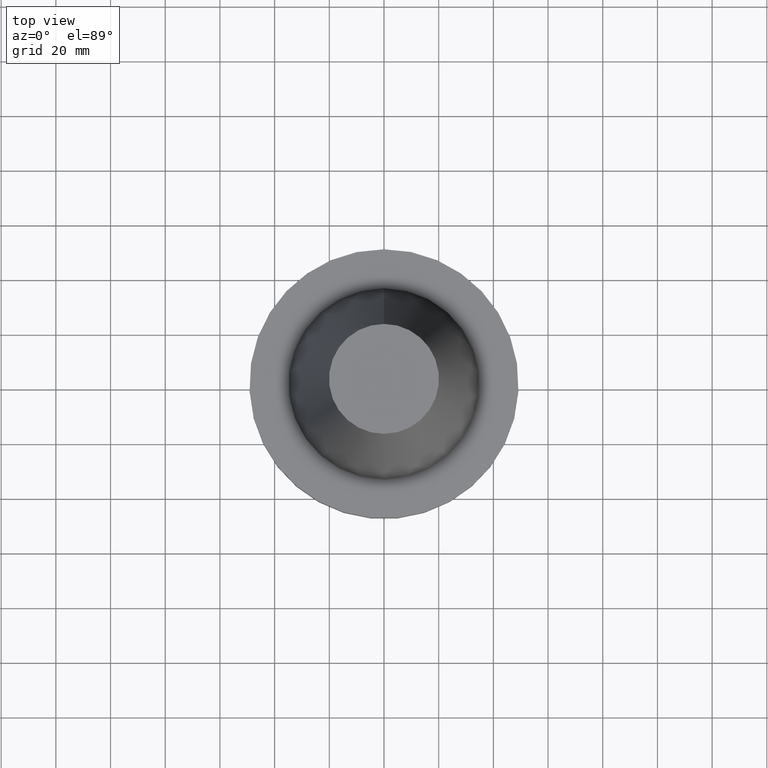
[diagram: clean part render]
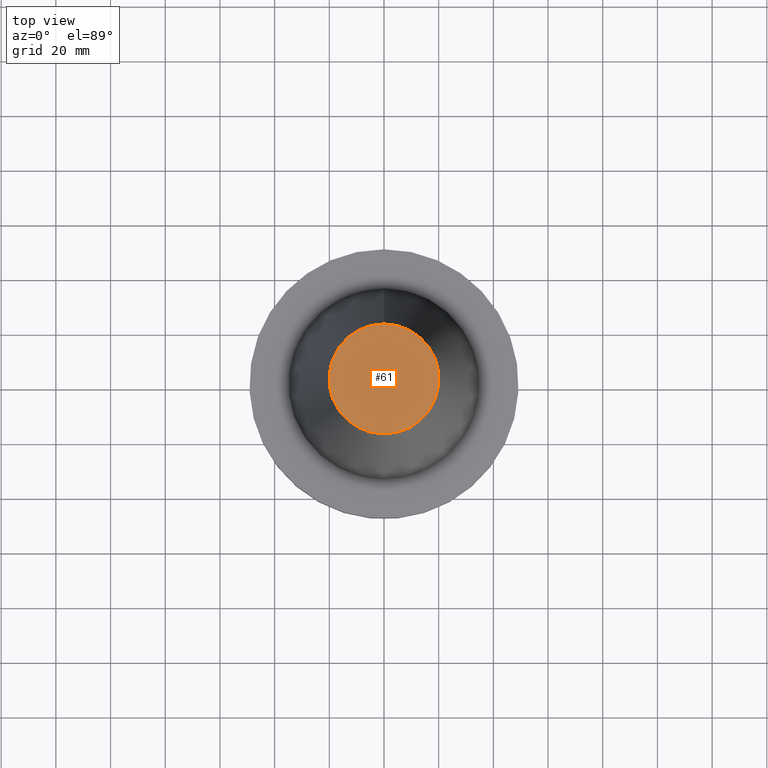
[diagram: same view with one face highlighted and labeled with its STEP entity id]
A machine part, top view. The second image highlights one B-rep face of the part: STEP entity #61.
In plain terms, the highlighted planar face has unit normal (-0, -0, 1).
Its self-contained STEP definition (entity closure, byte-faithful):
#61=ADVANCED_FACE('Unnamed[1]',(#160),#161,.T.);
#83=EDGE_CURVE('Unnamed[1]',#195,#195,#196,.T.);
#160=FACE_OUTER_BOUND('',#295,.T.);
#161=PLANE('',#296);
#195=VERTEX_POINT('',#339);
#196=CIRCLE('',#340,20.1083333297217);
#295=EDGE_LOOP('',(#449));
#296=AXIS2_PLACEMENT_3D('',#450,#451,#452);
#339=CARTESIAN_POINT('',(-6.22120573966855E-015,20.1083333297217,101.6));
#340=AXIS2_PLACEMENT_3D('',#489,#490,#491);
#449=ORIENTED_EDGE('',*,*,#83,.F.);
#450=CARTESIAN_POINT('',(-6.22120573966855E-015,10.0541666648608,101.6));
#451=DIRECTION('',(-6.12323399573677E-017,-1.22464679914735E-016,1.0));
#452=DIRECTION('',(1.23259516440783E-032,-1.0,-1.22464679914735E-016));
#489=CARTESIAN_POINT('',(-6.22120573966855E-015,-1.24424114793371E-014,101.6));
#490=DIRECTION('',(6.12323399573676E-017,1.22464679914735E-016,-1.0));
#491=DIRECTION('',(-1.23259516440783E-032,1.0,1.22464679914735E-016));